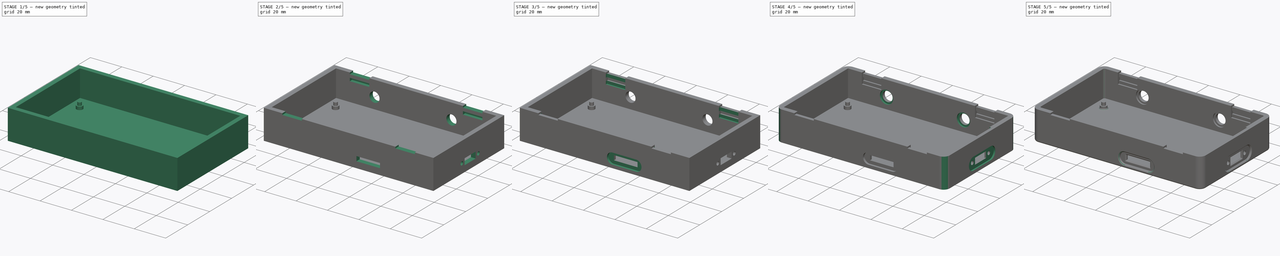
[diagram: build sequence overview — one tinted view per stage of 5, left to right]
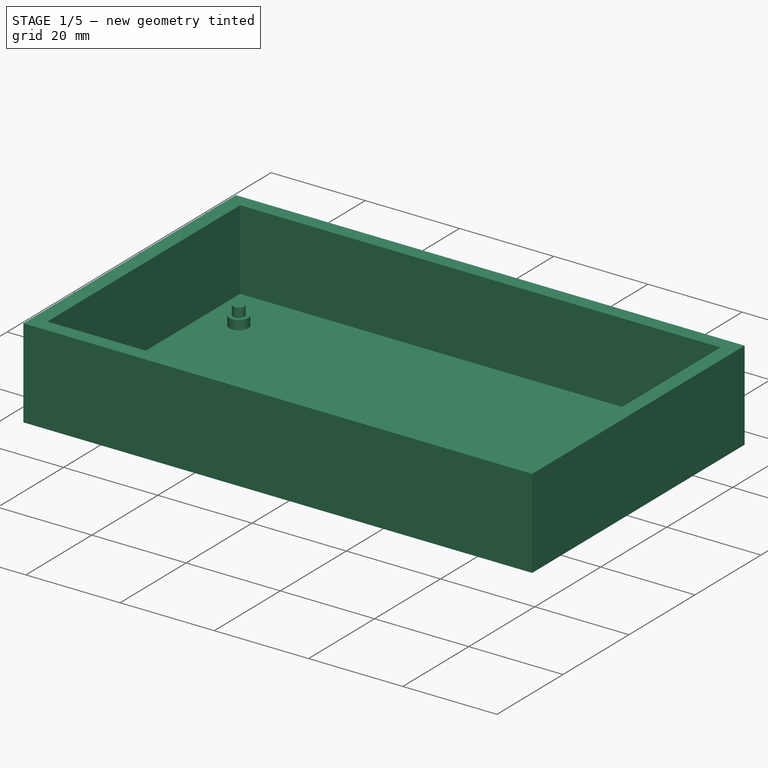
[diagram: stage 1 of 5 — iso view after this stage's code; geometry added in this stage tinted green]
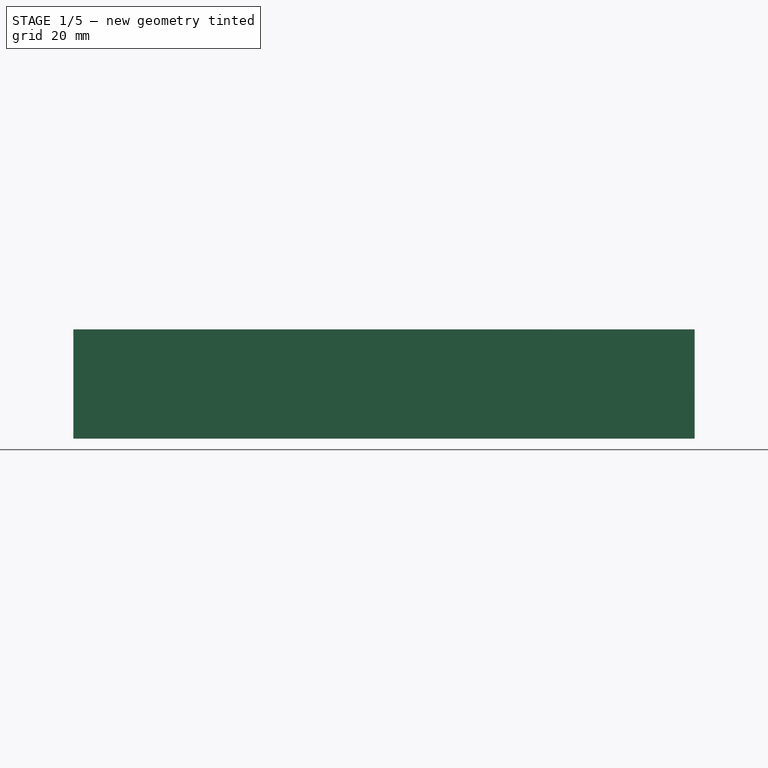
[diagram: stage 1 of 5 — front view after this stage's code; geometry added in this stage tinted green]
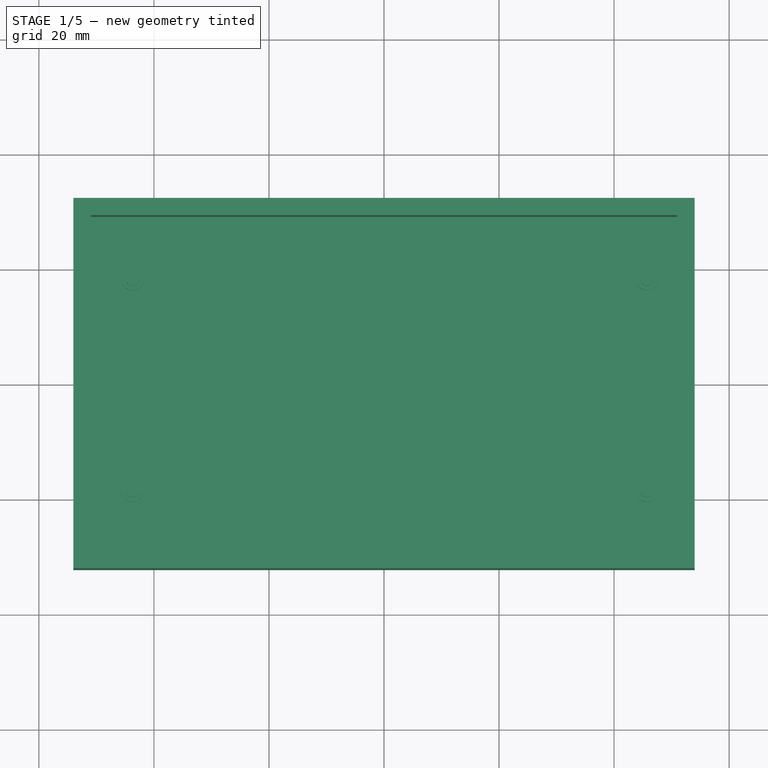
[diagram: stage 1 of 5 — top view after this stage's code; geometry added in this stage tinted green]
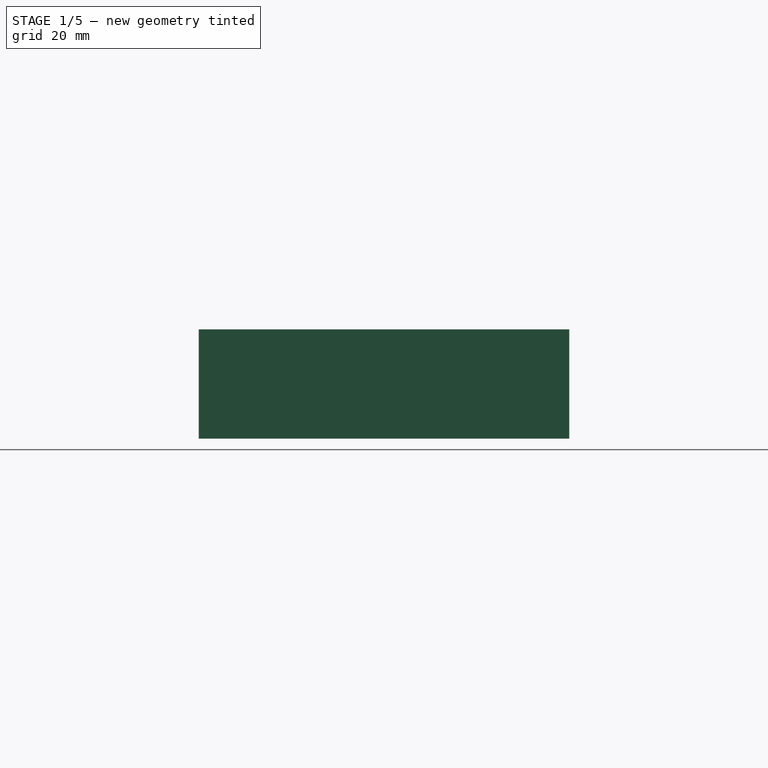
[diagram: stage 1 of 5 — right view after this stage's code; geometry added in this stage tinted green]
FCSTD DOCUMENT  (FreeCAD 0.17R13541 (Git))
Label: Case-Bottom-2
License: All rights reserved
LicenseURL: http://en.wikipedia.org/wiki/All_rights_reserved
objects: Sketcher::SketchObject×14, PartDesign::Pocket×11, Drawing::FeatureViewPython×9, Drawing::FeatureViewPart×6, PartDesign::Fillet×4, PartDesign::Pad×3, PartDesign::Chamfer×1, PartDesign::Body×1, Drawing::FeaturePage×1
note: 48 computed .brp shape members not serialized (recipe doc carries the construction recipe); baked Part::Feature solids carry a one-line shape summary decoded from their .brp

FEATURE [Sketcher::SketchObject] Sketch  label="Case-Outer"
  MapMode = 5
  Support = -> [XY_Plane]
  sketch-geometry (8):
    g0: LineSegment StartX=-54 StartY=32.2 StartZ=0 EndX=54 EndY=32.2 EndZ=0
    g1: LineSegment StartX=54 StartY=32.2 StartZ=0 EndX=54 EndY=-32.2 EndZ=0
    g2: LineSegment StartX=54 StartY=-32.2 StartZ=0 EndX=-54 EndY=-32.2 EndZ=0
    g3: LineSegment StartX=-54 StartY=-32.2 StartZ=0 EndX=-54 EndY=32.2 EndZ=0
    g4: LineSegment [constr] StartX=-51 StartY=29.2 StartZ=0 EndX=51 EndY=29.2 EndZ=0
    g5: LineSegment [constr] StartX=51 StartY=29.2 StartZ=0 EndX=51 EndY=-29.2 EndZ=0
    g6: LineSegment [constr] StartX=51 StartY=-29.2 StartZ=0 EndX=-51 EndY=-29.2 EndZ=0
    g7: LineSegment [constr] StartX=-51 StartY=-29.2 StartZ=0 EndX=-51 EndY=29.2 EndZ=0
  constraints (24):
    c: Coincident(g0,g1)
    c: Coincident(g1,g2)
    c: Coincident(g2,g3)
    c: Coincident(g3,g0)
    c: Horizontal(g0)
    c: Horizontal(g2)
    c: Vertical(g1)
    c: Vertical(g3)
    c: Symmetric(g0,g0,g-2)
    c: Symmetric(g0,g1,g-1)
    c: Coincident(g4,g5)
    c: Coincident(g5,g6)
    c: Coincident(g6,g7)
    c: Coincident(g7,g4)
    c: Horizontal(g4)
    c: Horizontal(g6)
    c: Vertical(g5)
    c: Vertical(g7)
    c: Symmetric(g4,g4,g-2)
    c: Symmetric(g4,g5,g-1)
    c: DistanceX(g0,g4) = 3
    c: DistanceY(g4,g0) = 3
    c: Distance(g4) = 102
    c: Distance(g7) = 58.4
FEATURE [PartDesign::Pad] Pad  label="Solid"
  Length = 19
  Length2 = 100
  Profile = -> Sketch
  Type = 0
FEATURE [Sketcher::SketchObject] Sketch001  label="Case-Inner"
  ExternalGeometry = -> [Pad]
  MapMode = 5
  Placement = pos=(0,0,19) rot=(0,0,1;0rad)
  Support = -> [Pad]
  sketch-geometry (4):
    g0: LineSegment StartX=-51 StartY=29.2 StartZ=0 EndX=51 EndY=29.2 EndZ=0
    g1: LineSegment StartX=51 StartY=29.2 StartZ=0 EndX=51 EndY=-29.2 EndZ=0
    g2: LineSegment StartX=51 StartY=-29.2 StartZ=0 EndX=-51 EndY=-29.2 EndZ=0
    g3: LineSegment StartX=-51 StartY=-29.2 StartZ=0 EndX=-51 EndY=29.2 EndZ=0
  constraints (12):
    c: Coincident(g0,g1)
    c: Coincident(g1,g2)
    c: Coincident(g2,g3)
    c: Coincident(g3,g0)
    c: Horizontal(g0)
    c: Horizontal(g2)
    c: Vertical(g1)
    c: Vertical(g3)
    c: DistanceY(g0,g-3) = 3
    c: Symmetric(g0,g0,g-2)
    c: Symmetric(g0,g1,g-1)
    c: DistanceX(g-3,g0) = 3
FEATURE [PartDesign::Pocket] Pocket  label="Border"
  BaseFeature = -> Pad
  Length = 17
  Length2 = 100
  Profile = -> Sketch001
  Type = 0
FEATURE [Sketcher::SketchObject] Sketch002  label="PCB-Supporter"
  ExternalGeometry = -> [Pocket]
  MapMode = 5
  Placement = pos=(0,0,2) rot=(0,0,1;0rad)
  Support = -> [Pocket]
  sketch-geometry (8):
    g0: LineSegment [constr] StartX=-43.71 StartY=18.4 StartZ=0 EndX=45.75 EndY=18.4 EndZ=0
    g1: LineSegment [constr] StartX=45.75 StartY=18.4 StartZ=0 EndX=45.75 EndY=-18.4 EndZ=0
    g2: LineSegment [constr] StartX=45.75 StartY=-18.4 StartZ=0 EndX=-43.71 EndY=-18.4 EndZ=0
    g3: LineSegment [constr] StartX=-43.71 StartY=-18.4 StartZ=0 EndX=-43.71 EndY=18.4 EndZ=0
    g4: Circle CenterX=-43.71 CenterY=18.4 CenterZ=0 NormalX=0 NormalY=0 NormalZ=1 AngleXU=0 Radius=2
    g5: Circle CenterX=45.75 CenterY=18.4 CenterZ=0 NormalX=0 NormalY=0 NormalZ=1 AngleXU=0 Radius=2
    g6: Circle CenterX=45.75 CenterY=-18.4 CenterZ=0 NormalX=0 NormalY=0 NormalZ=1 AngleXU=0 Radius=2
    g7: Circle CenterX=-43.71 CenterY=-18.4 CenterZ=0 NormalX=0 NormalY=0 NormalZ=1 AngleXU=0 Radius=2
  constraints (20):
    c: Coincident(g0,g1)
    c: Coincident(g1,g2)
    c: Coincident(g2,g3)
    c: Coincident(g3,g0)
    c: Horizontal(g0)
    c: Horizontal(g2)
    c: Vertical(g1)
    c: Vertical(g3)
    c: DistanceX(g-3,g0) = 7.29
    c: DistanceY(g0,g-3) = 10.8
    c: Coincident(g5,g0)
    c: Coincident(g6,g1)
    c: Coincident(g7,g2)
    c: Equal(g4,g5)
    c: Equal(g5,g6)
    c: Equal(g6,g7)
    c: Radius(g4) = 2
    c: Coincident(g4,g0)
    c: DistanceX(g-3,g0) = 96.75
    c: DistanceY(g2,g-3) = 47.6
FEATURE [PartDesign::Pad] Pad001  label="Supporter"
  BaseFeature = -> Pocket
  Length = 2
  Length2 = 100
  Profile = -> Sketch002
  Type = 0
FEATURE [Sketcher::SketchObject] Sketch003  label="PCB-Hole"
  ExternalGeometry = -> [Pad001]
  MapMode = 5
  Placement = pos=(0,0,2) rot=(0,0,1;0rad)
  Support = -> [Pad001]
  sketch-geometry (4):
    g0: Circle CenterX=-43.71 CenterY=18.4 CenterZ=0 NormalX=0 NormalY=0 NormalZ=1 AngleXU=0 Radius=1.2
    g1: Circle CenterX=45.75 CenterY=18.4 CenterZ=0 NormalX=0 NormalY=0 NormalZ=1 AngleXU=0 Radius=1.2
    g2: Circle CenterX=45.75 CenterY=-18.4 CenterZ=0 NormalX=0 NormalY=0 NormalZ=1 AngleXU=0 Radius=1.2
    g3: Circle CenterX=-43.71 CenterY=-18.4 CenterZ=0 NormalX=0 NormalY=0 NormalZ=1 AngleXU=0 Radius=1.2
  constraints (8):
    c: Coincident(g0,g-6)
    c: Coincident(g1,g-7)
    c: Coincident(g3,g-8)
    c: Coincident(g2,g-9)
    c: Equal(g1,g0)
    c: Equal(g0,g3)
    c: Equal(g3,g2)
    c: Radius(g0) = 1.2
FEATURE [PartDesign::Pad] Pad002  label="PCB-Hole001"
  BaseFeature = -> Pad001
  Length = 4
  Length2 = 100
  Profile = -> Sketch003
  Type = 0
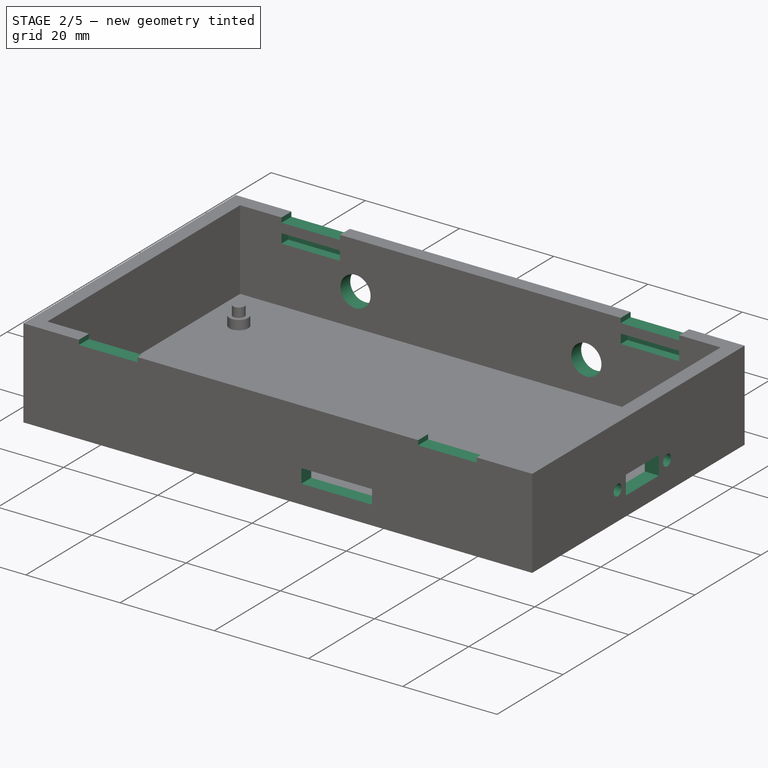
[diagram: stage 2 of 5 — iso view after this stage's code; geometry added in this stage tinted green]
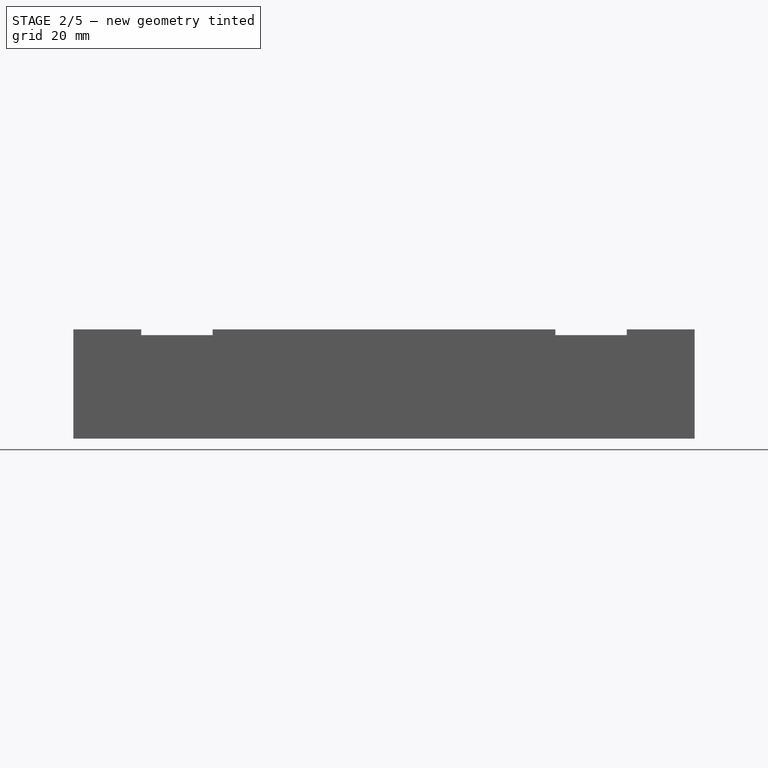
[diagram: stage 2 of 5 — front view after this stage's code; geometry added in this stage tinted green]
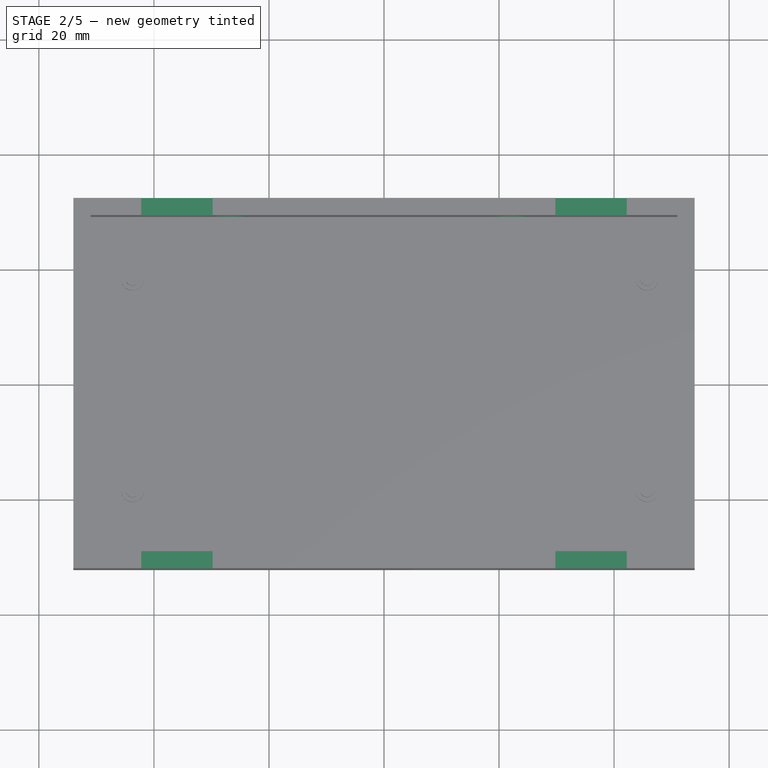
[diagram: stage 2 of 5 — top view after this stage's code; geometry added in this stage tinted green]
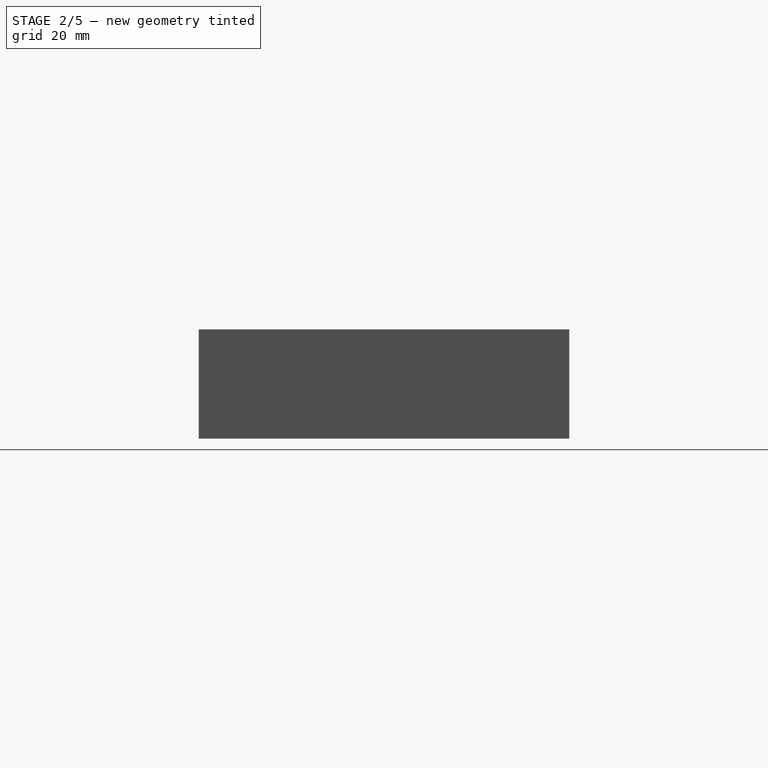
[diagram: stage 2 of 5 — right view after this stage's code; geometry added in this stage tinted green]
FEATURE [Sketcher::SketchObject] Sketch004  label="Power-Function-Key"
  ExternalGeometry = -> [Pad002]
  MapMode = 5
  Placement = pos=(0,32.2,0) rot=(0,0.707107,0.707107;3.14159rad)
  Support = -> [Pad002]
  sketch-geometry (10):
    g0: LineSegment StartX=-42.2 StartY=18 StartZ=0 EndX=-29.8 EndY=18 EndZ=0
    g1: LineSegment StartX=-29.8 StartY=18 StartZ=0 EndX=-29.8 EndY=19 EndZ=0
    g2: LineSegment StartX=-29.8 StartY=19 StartZ=0 EndX=-42.2 EndY=19 EndZ=0
    g3: LineSegment StartX=-42.2 StartY=19 StartZ=0 EndX=-42.2 EndY=18 EndZ=0
    g4: LineSegment StartX=29.8 StartY=19 StartZ=0 EndX=42.2 EndY=19 EndZ=0
    g5: LineSegment StartX=42.2 StartY=19 StartZ=0 EndX=42.2 EndY=18 EndZ=0
    g6: LineSegment StartX=42.2 StartY=18 StartZ=0 EndX=29.8 EndY=18 EndZ=0
    g7: LineSegment StartX=29.8 StartY=18 StartZ=0 EndX=29.8 EndY=19 EndZ=0
    g8: Circle CenterX=-22.5 CenterY=9 CenterZ=0 NormalX=0 NormalY=0 NormalZ=1 AngleXU=0 Radius=3.2
    g9: Circle CenterX=26.5 CenterY=9 CenterZ=0 NormalX=0 NormalY=0 NormalZ=1 AngleXU=0 Radius=3.2
  constraints (30):
    c: Coincident(g0,g1)
    c: Coincident(g1,g2)
    c: Coincident(g2,g3)
    c: Coincident(g3,g0)
    c: Horizontal(g0)
    c: Horizontal(g2)
    c: Vertical(g1)
    c: Vertical(g3)
    c: Coincident(g4,g5)
    c: Coincident(g5,g6)
    c: Coincident(g6,g7)
    c: Coincident(g7,g4)
    c: Horizontal(g4)
    c: Horizontal(g6)
    c: Vertical(g5)
    c: Vertical(g7)
    c: PointOnObject(g4,g-3)
    c: Equal(g0,g4)
    c: Equal(g1,g5)
    c: Distance(g0) = 12.4
    c: Distance(g5) = 1
    c: DistanceX(g-3,g0) = 11.8
    c: DistanceX(g-3,g4) = 83.8
    c: Equal(g8,g9)
    c: Radius(g8) = 3.2
    c: DistanceX(g-3,g8) = 31.5
    c: DistanceX(g-3,g9) = 80.5
    c: Horizontal(g8,g9)
    c: DistanceY(g-4,g8) = 7
    c: Horizontal(g1,g4)
FEATURE [PartDesign::Pocket] Pocket001  label="Right-Side"
  BaseFeature = -> Pad002
  Length = 3
  Length2 = 100
  Profile = -> Sketch004
  Type = 0
FEATURE [Sketcher::SketchObject] Sketch005  label="SD-Card"
  ExternalGeometry = -> [Pocket001]
  MapMode = 5
  Placement = pos=(0,-32.2,0) rot=(1,0,0;1.5708rad)
  Support = -> [Pocket001]
  sketch-geometry (12):
    g0: LineSegment StartX=-42.2 StartY=19 StartZ=0 EndX=-29.8 EndY=19 EndZ=0
    g1: LineSegment StartX=-29.8 StartY=19 StartZ=0 EndX=-29.8 EndY=18 EndZ=0
    g2: LineSegment StartX=-29.8 StartY=18 StartZ=0 EndX=-42.2 EndY=18 EndZ=0
    g3: LineSegment StartX=-42.2 StartY=18 StartZ=0 EndX=-42.2 EndY=19 EndZ=0
    g4: LineSegment StartX=29.8 StartY=19 StartZ=0 EndX=42.2 EndY=19 EndZ=0
    g5: LineSegment StartX=42.2 StartY=19 StartZ=0 EndX=42.2 EndY=18 EndZ=0
    g6: LineSegment StartX=42.2 StartY=18 StartZ=0 EndX=29.8 EndY=18 EndZ=0
    g7: LineSegment StartX=29.8 StartY=18 StartZ=0 EndX=29.8 EndY=19 EndZ=0
    g8: LineSegment StartX=5 StartY=7 StartZ=0 EndX=20 EndY=7 EndZ=0
    g9: LineSegment StartX=20 StartY=7 StartZ=0 EndX=20 EndY=4 EndZ=0
    g10: LineSegment StartX=20 StartY=4 StartZ=0 EndX=5 EndY=4 EndZ=0
    g11: LineSegment StartX=5 StartY=4 StartZ=0 EndX=5 EndY=7 EndZ=0
  constraints (34):
    c: Coincident(g3,g2)
    c: Coincident(g1,g2)
    c: Coincident(g1,g0)
    c: Coincident(g3,g0)
    c: Horizontal(g0)
    c: Horizontal(g2)
    c: Vertical(g3)
    c: Vertical(g1)
    c: Coincident(g7,g4)
    c: Coincident(g4,g5)
    c: Coincident(g6,g5)
    c: Coincident(g6,g7)
    c: Horizontal(g6)
    c: Horizontal(g4)
    c: Vertical(g7)
    c: Vertical(g5)
    c: Equal(g1,g5)
    c: Equal(g0,g4)
    c: Coincident(g11,g10)
    c: Coincident(g11,g8)
    c: Coincident(g8,g9)
    c: Coincident(g9,g10)
    c: Horizontal(g8)
    c: Horizontal(g10)
    c: Vertical(g11)
    c: Vertical(g9)
    c: Coincident(g1,g-5)
    c: Coincident(g5,g-6)
    c: DistanceY(g5,g5) = 1
    c: Distance(g10) = 15
    c: Distance(g11) = 3
    c: DistanceX(g9,g-4) = 31
    c: DistanceY(g-4,g9) = 2
    c: DistanceX(g4,g4) = 12.4
FEATURE [PartDesign::Pocket] Pocket002  label="Left-Side"
  BaseFeature = -> Pocket001
  Length = 3
  Length2 = 100
  Profile = -> Sketch005
  Type = 0
FEATURE [Sketcher::SketchObject] Sketch006  label="USB-LED"
  ExternalGeometry = -> [Pocket002]
  MapMode = 5
  Placement = pos=(54,0,0) rot=(0.57735,0.57735,0.57735;2.0944rad)
  Support = -> [Pocket002]
  sketch-geometry (6):
    g0: LineSegment StartX=-3.8 StartY=8 StartZ=0 EndX=6.2 EndY=8 EndZ=0
    g1: LineSegment StartX=6.2 StartY=8 StartZ=0 EndX=6.2 EndY=4 EndZ=0
    g2: LineSegment StartX=6.2 StartY=4 StartZ=0 EndX=-3.8 EndY=4 EndZ=0
    g3: LineSegment StartX=-3.8 StartY=4 StartZ=0 EndX=-3.8 EndY=8 EndZ=0
    g4: Circle CenterX=-6.3 CenterY=6 CenterZ=0 NormalX=0 NormalY=0 NormalZ=1 AngleXU=0 Radius=1.2
    g5: Circle CenterX=8.7 CenterY=6 CenterZ=0 NormalX=0 NormalY=0 NormalZ=1 AngleXU=0 Radius=1.2
  constraints (18):
    c: Coincident(g0,g1)
    c: Coincident(g1,g2)
    c: Coincident(g2,g3)
    c: Coincident(g3,g0)
    c: Horizontal(g0)
    c: Horizontal(g2)
    c: Vertical(g1)
    c: Vertical(g3)
    c: Equal(g4,g5)
    c: Radius(g4) = 1.2
    c: Distance(g0) = 10
    c: Distance(g1) = 4
    c: Horizontal(g5,g4)
    c: DistanceX(g5,g-4) = 20.5
    c: DistanceX(g4,g-4) = 35.5
    c: DistanceX(g1,g-4) = 23
    c: DistanceY(g-4,g1) = 2
    c: DistanceY(g-4,g5) = 4
FEATURE [PartDesign::Pocket] Pocket003  label="Bottom-Side"
  BaseFeature = -> Pocket002
  Length = 3
  Length2 = 100
  Profile = -> Sketch006
  Type = 0
FEATURE [Sketcher::SketchObject] Sketch007  label="Locking-Hole-R"
  ExternalGeometry = -> [Pocket003]
  MapMode = 5
  Placement = pos=(0,29.2,0) rot=(1,0,0;1.5708rad)
  Support = -> [Pocket003]
  sketch-geometry (8):
    g0: LineSegment StartX=-42.2 StartY=16 StartZ=0 EndX=-29.8 EndY=16 EndZ=0
    g1: LineSegment StartX=-29.8 StartY=16 StartZ=0 EndX=-29.8 EndY=14 EndZ=0
    g2: LineSegment StartX=-29.8 StartY=14 StartZ=0 EndX=-42.2 EndY=14 EndZ=0
    g3: LineSegment StartX=-42.2 StartY=14 StartZ=0 EndX=-42.2 EndY=16 EndZ=0
    g4: LineSegment StartX=29.8 StartY=16 StartZ=0 EndX=42.2 EndY=16 EndZ=0
    g5: LineSegment StartX=42.2 StartY=16 StartZ=0 EndX=42.2 EndY=14 EndZ=0
    g6: LineSegment StartX=42.2 StartY=14 StartZ=0 EndX=29.8 EndY=14 EndZ=0
    g7: LineSegment StartX=29.8 StartY=14 StartZ=0 EndX=29.8 EndY=16 EndZ=0
  constraints (24):
    c: Coincident(g0,g1)
    c: Coincident(g1,g2)
    c: Coincident(g2,g3)
    c: Coincident(g3,g0)
    c: Horizontal(g0)
    c: Horizontal(g2)
    c: Vertical(g1)
    c: Vertical(g3)
    c: Coincident(g4,g5)
    c: Coincident(g5,g6)
    c: Coincident(g6,g7)
    c: Coincident(g7,g4)
    c: Horizontal(g4)
    c: Horizontal(g6)
    c: Vertical(g5)
    c: Vertical(g7)
    c: Vertical(g-5,g0)
    c: Vertical(g-5,g0)
    c: Vertical(g4,g-4)
    c: Vertical(g-4,g4)
    c: Equal(g1,g5)
    c: Horizontal(g0,g4)
    c: DistanceY(g0,g-5) = 2
    c: DistanceY(g2,g-5) = 4
FEATURE [PartDesign::Pocket] Pocket004  label="Right-Locking-Hole"
  BaseFeature = -> Pocket003
  Length = 2
  Length2 = 100
  Profile = -> Sketch007
  Type = 0
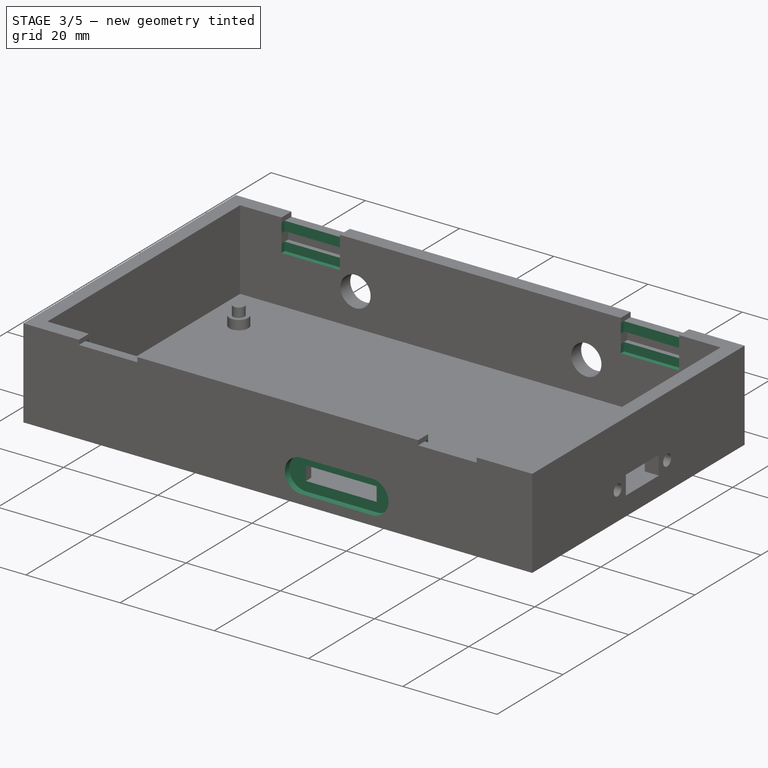
[diagram: stage 3 of 5 — iso view after this stage's code; geometry added in this stage tinted green]
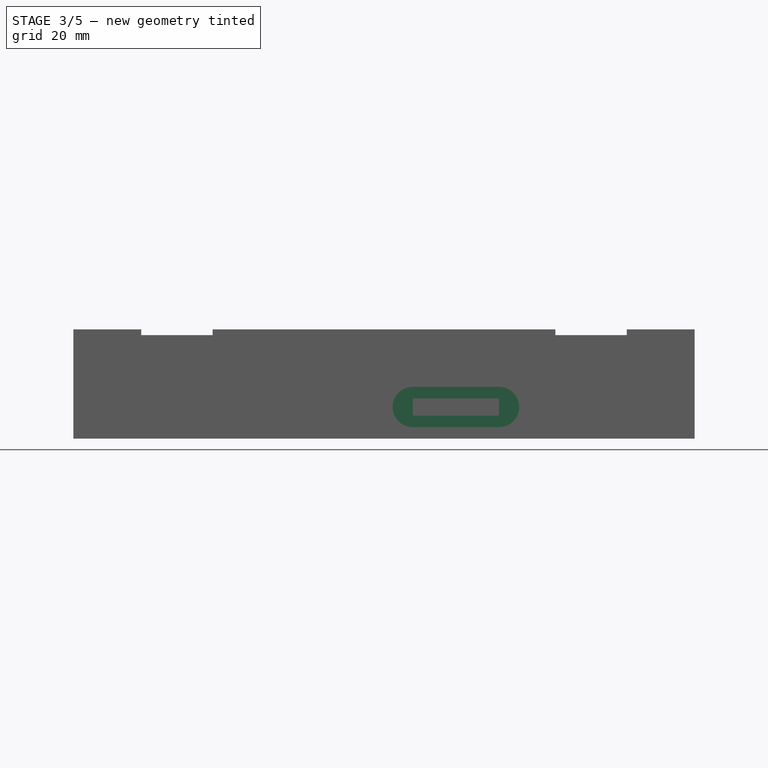
[diagram: stage 3 of 5 — front view after this stage's code; geometry added in this stage tinted green]
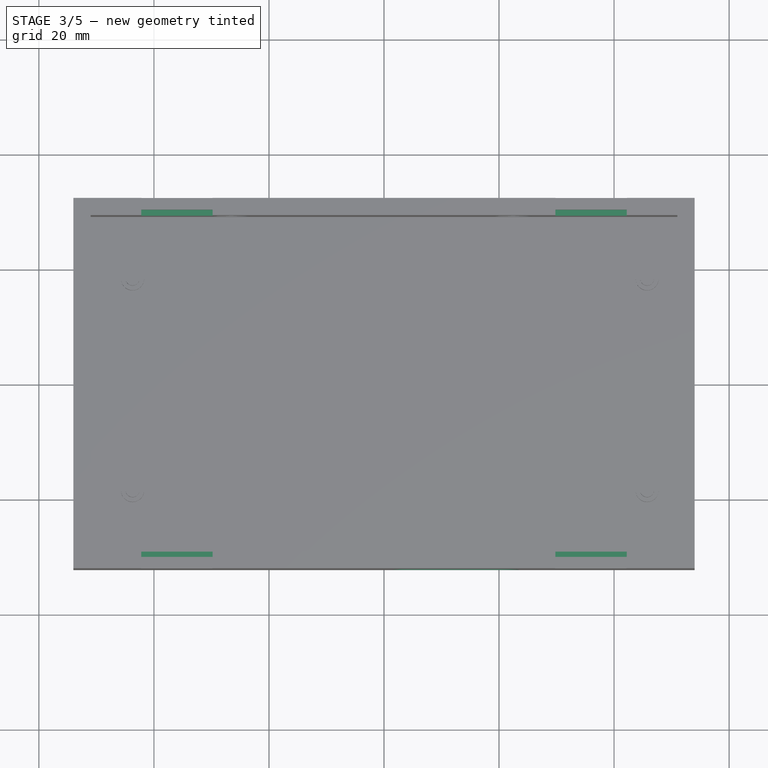
[diagram: stage 3 of 5 — top view after this stage's code; geometry added in this stage tinted green]
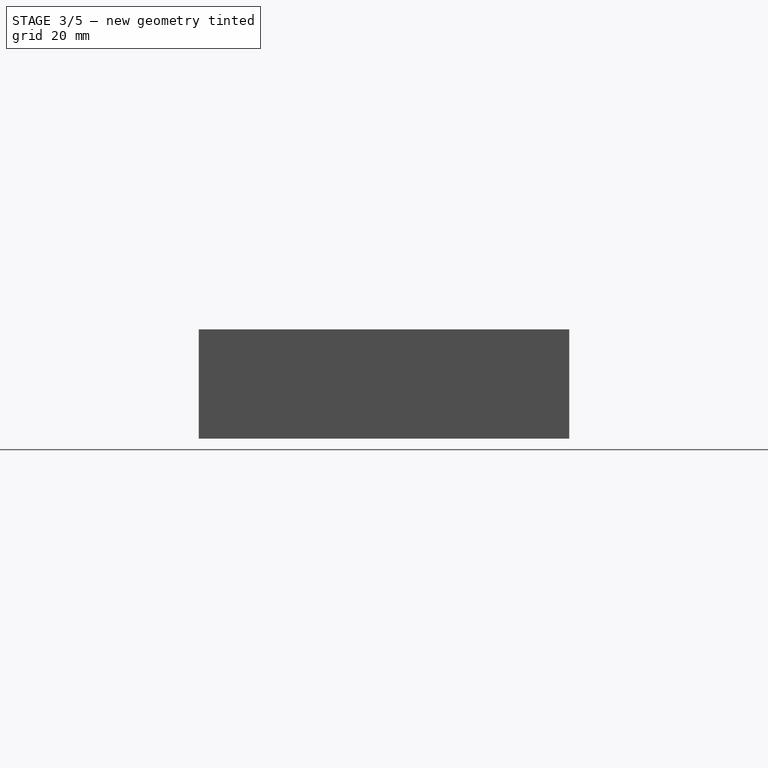
[diagram: stage 3 of 5 — right view after this stage's code; geometry added in this stage tinted green]
FEATURE [Sketcher::SketchObject] Sketch008  label="Locking-Hole-L"
  ExternalGeometry = -> [Pocket004]
  MapMode = 5
  Placement = pos=(0,-29.2,0) rot=(0,0.707107,0.707107;3.14159rad)
  Support = -> [Pocket004]
  sketch-geometry (8):
    g0: LineSegment StartX=-42.2 StartY=16 StartZ=0 EndX=-29.8 EndY=16 EndZ=0
    g1: LineSegment StartX=-29.8 StartY=16 StartZ=0 EndX=-29.8 EndY=14 EndZ=0
    g2: LineSegment StartX=-29.8 StartY=14 StartZ=0 EndX=-42.2 EndY=14 EndZ=0
    g3: LineSegment StartX=-42.2 StartY=14 StartZ=0 EndX=-42.2 EndY=16 EndZ=0
    g4: LineSegment StartX=29.8 StartY=16 StartZ=0 EndX=42.2 EndY=16 EndZ=0
    g5: LineSegment StartX=42.2 StartY=16 StartZ=0 EndX=42.2 EndY=14 EndZ=0
    g6: LineSegment StartX=42.2 StartY=14 StartZ=0 EndX=29.8 EndY=14 EndZ=0
    g7: LineSegment StartX=29.8 StartY=14 StartZ=0 EndX=29.8 EndY=16 EndZ=0
  constraints (24):
    c: Coincident(g0,g1)
    c: Coincident(g1,g2)
    c: Coincident(g2,g3)
    c: Coincident(g3,g0)
    c: Horizontal(g0)
    c: Horizontal(g2)
    c: Vertical(g1)
    c: Vertical(g3)
    c: Coincident(g4,g5)
    c: Coincident(g5,g6)
    c: Coincident(g6,g7)
    c: Coincident(g7,g4)
    c: Horizontal(g4)
    c: Horizontal(g6)
    c: Vertical(g5)
    c: Vertical(g7)
    c: Vertical(g-3,g0)
    c: Vertical(g-3,g0)
    c: Vertical(g-4,g4)
    c: Vertical(g-4,g4)
    c: Equal(g3,g7)
    c: DistanceY(g3,g3) = 2
    c: DistanceY(g0,g-3) = 2
    c: Horizontal(g0,g4)
FEATURE [PartDesign::Pocket] Pocket005  label="Left-Locking-Hole"
  BaseFeature = -> Pocket004
  Length = 2
  Length2 = 100
  Profile = -> Sketch008
  Type = 0
FEATURE [Sketcher::SketchObject] Sketch009  label="Locking-Hole-Sunken"
  ExternalGeometry = -> [Pocket005]
  MapMode = 5
  Placement = pos=(0,0,19) rot=(0,0,1;0rad)
  Support = -> [Pocket005]
  sketch-geometry (16):
    g0: LineSegment StartX=-42.2 StartY=30.2 StartZ=0 EndX=-29.8 EndY=30.2 EndZ=0
    g1: LineSegment StartX=-29.8 StartY=30.2 StartZ=0 EndX=-29.8 EndY=29.2 EndZ=0
    g2: LineSegment StartX=-29.8 StartY=29.2 StartZ=0 EndX=-42.2 EndY=29.2 EndZ=0
    g3: LineSegment StartX=-42.2 StartY=29.2 StartZ=0 EndX=-42.2 EndY=30.2 EndZ=0
    g4: LineSegment StartX=29.8 StartY=30.2 StartZ=0 EndX=42.2 EndY=30.2 EndZ=0
    g5: LineSegment StartX=42.2 StartY=30.2 StartZ=0 EndX=42.2 EndY=29.2 EndZ=0
    g6: LineSegment StartX=42.2 StartY=29.2 StartZ=0 EndX=29.8 EndY=29.2 EndZ=0
    g7: LineSegment StartX=29.8 StartY=29.2 StartZ=0 EndX=29.8 EndY=30.2 EndZ=0
    g8: LineSegment StartX=29.8 StartY=-29.2 StartZ=0 EndX=42.2 EndY=-29.2 EndZ=0
    g9: LineSegment StartX=42.2 StartY=-29.2 StartZ=0 EndX=42.2 EndY=-30.2 EndZ=0
    g10: LineSegment StartX=42.2 StartY=-30.2 StartZ=0 EndX=29.8 EndY=-30.2 EndZ=0
    g11: LineSegment StartX=29.8 StartY=-30.2 StartZ=0 EndX=29.8 EndY=-29.2 EndZ=0
    g12: LineSegment StartX=-42.2 StartY=-29.2 StartZ=0 EndX=-29.8 EndY=-29.2 EndZ=0
    g13: LineSegment StartX=-29.8 StartY=-29.2 StartZ=0 EndX=-29.8 EndY=-30.2 EndZ=0
    g14: LineSegment StartX=-29.8 StartY=-30.2 StartZ=0 EndX=-42.2 EndY=-30.2 EndZ=0
    g15: LineSegment StartX=-42.2 StartY=-30.2 StartZ=0 EndX=-42.2 EndY=-29.2 EndZ=0
  constraints (48):
    c: Coincident(g0,g1)
    c: Coincident(g1,g2)
    c: Coincident(g2,g3)
    c: Coincident(g3,g0)
    c: Horizontal(g0)
    c: Horizontal(g2)
    c: Vertical(g1)
    c: Vertical(g3)
    c: Coincident(g4,g5)
    c: Coincident(g5,g6)
    c: Coincident(g6,g7)
    c: Coincident(g7,g4)
    c: Horizontal(g4)
    c: Horizontal(g6)
    c: Vertical(g5)
    c: Vertical(g7)
    c: Coincident(g8,g9)
    c: Coincident(g9,g10)
    c: Coincident(g10,g11)
    c: Coincident(g11,g8)
    c: Horizontal(g8)
    c: Horizontal(g10)
    c: Vertical(g9)
    c: Vertical(g11)
    c: Coincident(g12,g13)
    c: Coincident(g13,g14)
    c: Coincident(g14,g15)
    c: Coincident(g15,g12)
    c: Horizontal(g12)
    c: Horizontal(g14)
    c: Vertical(g13)
    c: Vertical(g15)
    c: Vertical(g0,g-3)
    c: Vertical(g-3,g0)
    c: Vertical(g4,g-4)
    c: Vertical(g4,g-4)
    c: Vertical(g-5,g10)
    c: Vertical(g-5,g9)
    c: Vertical(g-6,g14)
    c: Vertical(g-6,g13)
    c: Horizontal(g0,g4)
    c: Horizontal(g12,g8)
    c: Equal(g3,g15)
    c: Equal(g15,g11)
    c: Equal(g11,g7)
    c: DistanceY(g1,g1) = 1
    c: DistanceY(g0,g-3) = 2
    c: DistanceY(g-6,g14) = 2
FEATURE [PartDesign::Pocket] Pocket006  label="Locking-Hole-Guide"
  BaseFeature = -> Pocket005
  Length = 6.8
  Length2 = 100
  Profile = -> Sketch009
  Type = 0
FEATURE [Sketcher::SketchObject] Sketch010  label="SD-Card-Sunken"
  ExternalGeometry = -> [Pocket006]
  MapMode = 5
  Placement = pos=(0,-32.2,0) rot=(1,0,0;1.5708rad)
  Support = -> [Pocket006]
  sketch-geometry (4):
    g0: ArcOfCircle CenterX=5 CenterY=5.5 CenterZ=0 NormalX=0 NormalY=0 NormalZ=1 AngleXU=0 Radius=3.5 StartAngle=1.5708 EndAngle=4.71239
    g1: ArcOfCircle CenterX=20 CenterY=5.5 CenterZ=0 NormalX=0 NormalY=0 NormalZ=1 AngleXU=0 Radius=3.5 StartAngle=4.71239 EndAngle=7.85398
    g2: LineSegment StartX=5 StartY=2 StartZ=0 EndX=20 EndY=2 EndZ=0
    g3: LineSegment StartX=5 StartY=9 StartZ=0 EndX=20 EndY=9 EndZ=0
  constraints (10):
    c: Tangent(g0,g3) = 1.5708
    c: Tangent(g0,g2) = -1.5708
    c: Tangent(g2,g1) = -1.5708
    c: Tangent(g3,g1) = 1.5708
    c: Horizontal(g2)
    c: Equal(g0,g1)
    c: Vertical(g0,g-3)
    c: Vertical(g1,g-3)
    c: DistanceY(g1,g-4) = 2
    c: DistanceY(g-3,g1) = 2
FEATURE [PartDesign::Pocket] Pocket007  label="Left-Sunken"
  BaseFeature = -> Pocket006
  Length = 1.4
  Length2 = 100
  Profile = -> Sketch010
  Type = 0
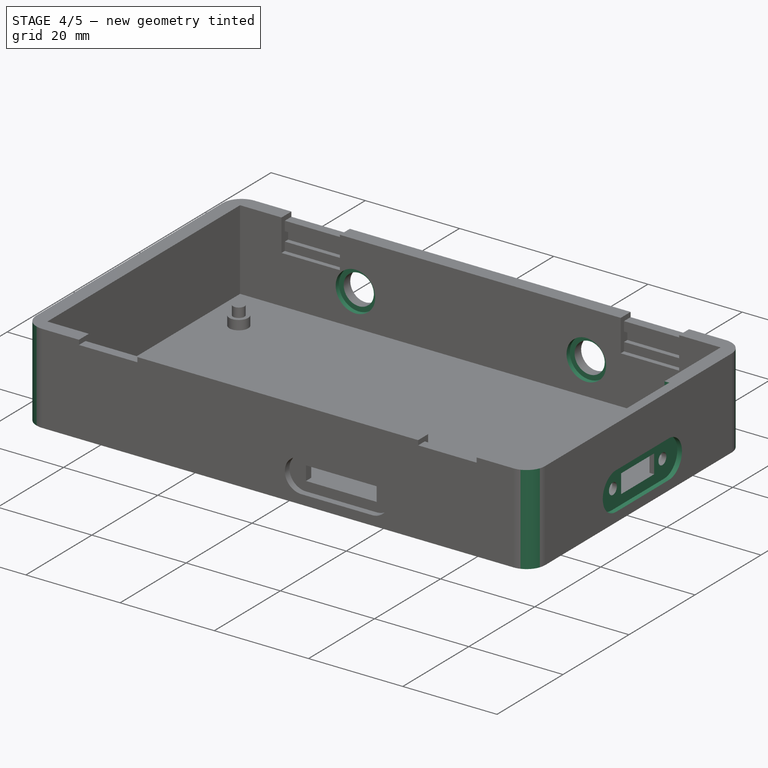
[diagram: stage 4 of 5 — iso view after this stage's code; geometry added in this stage tinted green]
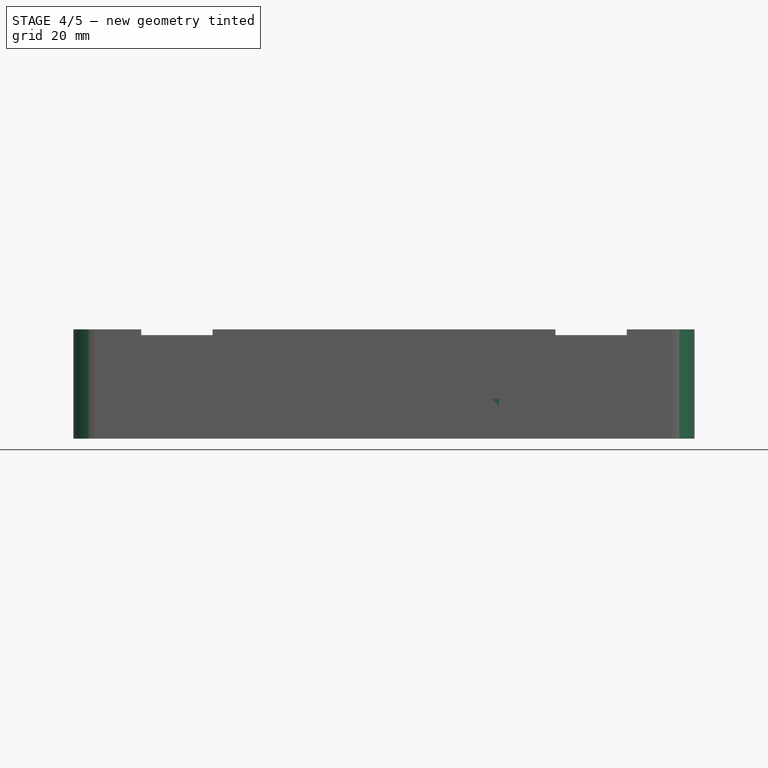
[diagram: stage 4 of 5 — front view after this stage's code; geometry added in this stage tinted green]
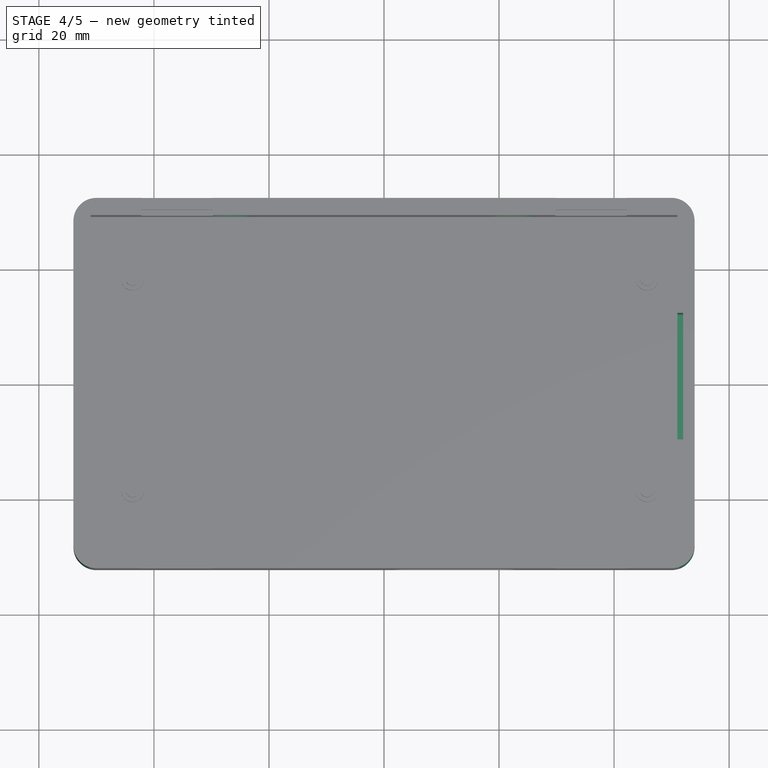
[diagram: stage 4 of 5 — top view after this stage's code; geometry added in this stage tinted green]
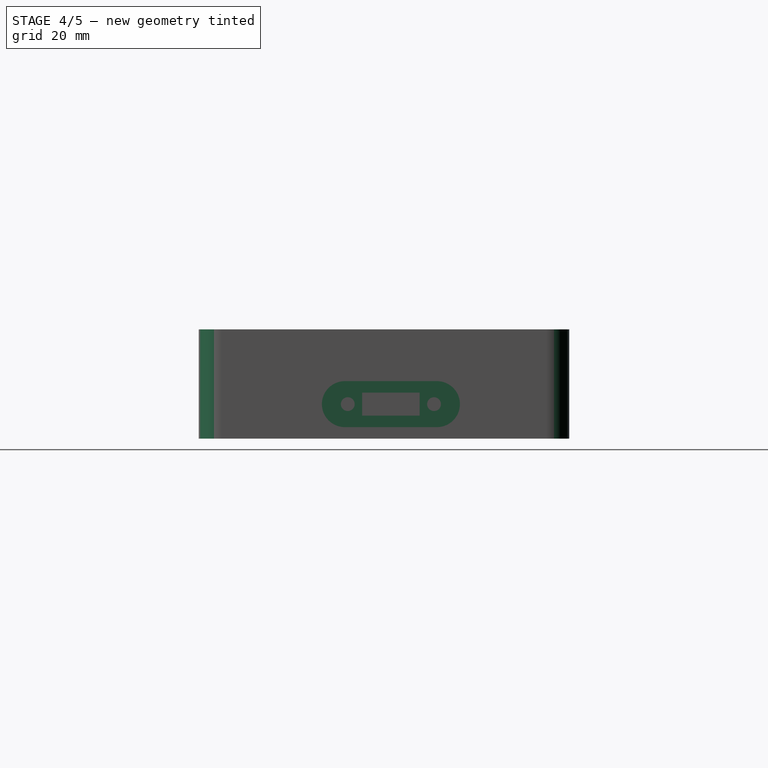
[diagram: stage 4 of 5 — right view after this stage's code; geometry added in this stage tinted green]
FEATURE [Sketcher::SketchObject] Sketch011  label="USB-Sunken-Outer"
  ExternalGeometry = -> [Pocket007]
  MapMode = 5
  Placement = pos=(54,0,0) rot=(0.57735,0.57735,0.57735;2.0944rad)
  Support = -> [Pocket007]
  sketch-geometry (4):
    g0: ArcOfCircle CenterX=-6.8 CenterY=6 CenterZ=0 NormalX=0 NormalY=0 NormalZ=1 AngleXU=0 Radius=4 StartAngle=1.5708 EndAngle=4.71239
    g1: ArcOfCircle CenterX=9.2 CenterY=6 CenterZ=0 NormalX=0 NormalY=0 NormalZ=1 AngleXU=0 Radius=4 StartAngle=4.71239 EndAngle=7.85398
    g2: LineSegment StartX=-6.8 StartY=2 StartZ=0 EndX=9.2 EndY=2 EndZ=0
    g3: LineSegment StartX=-6.8 StartY=10 StartZ=0 EndX=9.2 EndY=10 EndZ=0
  constraints (10):
    c: Tangent(g0,g3) = 1.5708
    c: Tangent(g0,g2) = -1.5708
    c: Tangent(g2,g1) = -1.5708
    c: Tangent(g3,g1) = 1.5708
    c: Horizontal(g2)
    c: Equal(g0,g1)
    c: DistanceX(g-4,g1) = 3
    c: DistanceY(g1,g-4) = 2
    c: DistanceX(g0,g-3) = 3
    c: DistanceY(g-3,g0) = 2
FEATURE [PartDesign::Pocket] Pocket008  label="Bottom-Sunken"
  BaseFeature = -> Pocket007
  Length = 1
  Length2 = 100
  Profile = -> Sketch011
  Type = 0
FEATURE [Sketcher::SketchObject] Sketch012  label="Key-Outer"
  ExternalGeometry = -> [Pocket008]
  MapMode = 5
  Placement = pos=(0,29.2,0) rot=(1,0,0;1.5708rad)
  sketch-geometry (2):
    g0: Circle CenterX=-26.5 CenterY=9 CenterZ=0 NormalX=0 NormalY=0 NormalZ=1 AngleXU=0 Radius=4.2
    g1: Circle CenterX=22.5 CenterY=9 CenterZ=0 NormalX=0 NormalY=0 NormalZ=1 AngleXU=0 Radius=4.2
  constraints (4):
    c: Coincident(g-4,g1)
    c: Coincident(g-3,g0)
    c: Radius(g0) = 4.2
    c: Equal(g0,g1)
FEATURE [PartDesign::Pocket] Pocket009
  BaseFeature = -> Pocket008
  Length = 1
  Length2 = 100
  Profile = -> Sketch012
  Type = 0
FEATURE [Sketcher::SketchObject] Sketch013  label="USB-Sunken-Inner"
  ExternalGeometry = -> [Pocket009]
  MapMode = 5
  Placement = pos=(51,0,0) rot=(0.57735,-0.57735,-0.57735;2.0944rad)
  Support = -> [Pocket009]
  sketch-geometry (12):
    g0: LineSegment StartX=-12.2 StartY=19 StartZ=0 EndX=9.8 EndY=19 EndZ=0
    g1: LineSegment StartX=9.8 StartY=19 StartZ=0 EndX=9.8 EndY=2 EndZ=0
    g2: LineSegment StartX=9.8 StartY=2 StartZ=0 EndX=-12.2 EndY=2 EndZ=0
    g3: LineSegment StartX=-12.2 StartY=2 StartZ=0 EndX=-12.2 EndY=19 EndZ=0
    g4: LineSegment [constr] StartX=-12.2 StartY=4 StartZ=0 EndX=-6.2 EndY=4 EndZ=0
    g5: LineSegment [constr] StartX=-6.2 StartY=4 StartZ=0 EndX=-6.2 EndY=2 EndZ=0
    g6: LineSegment [constr] StartX=-6.2 StartY=2 StartZ=0 EndX=-12.2 EndY=2 EndZ=0
    g7: LineSegment [constr] StartX=-12.2 StartY=2 StartZ=0 EndX=-12.2 EndY=4 EndZ=0
    g8: LineSegment [constr] StartX=3.8 StartY=4 StartZ=0 EndX=9.8 EndY=4 EndZ=0
    g9: LineSegment [constr] StartX=9.8 StartY=4 StartZ=0 EndX=9.8 EndY=2 EndZ=0
    g10: LineSegment [constr] StartX=9.8 StartY=2 StartZ=0 EndX=3.8 EndY=2 EndZ=0
    g11: LineSegment [constr] StartX=3.8 StartY=2 StartZ=0 EndX=3.8 EndY=4 EndZ=0
  constraints (35):
    c: Coincident(g0,g1)
    c: Coincident(g1,g2)
    c: Coincident(g2,g3)
    c: Coincident(g3,g0)
    c: Horizontal(g0)
    c: Horizontal(g2)
    c: Vertical(g1)
    c: Vertical(g3)
    c: PointOnObject(g0,g-4)
    c: PointOnObject(g2,g-5)
    c: Coincident(g4,g5)
    c: Coincident(g5,g6)
    c: Coincident(g6,g7)
    c: Coincident(g7,g4)
    c: Horizontal(g4)
    c: Horizontal(g6)
    c: Vertical(g5)
    c: Vertical(g7)
    c: Coincident(g4,g-3)
    c: PointOnObject(g5,g-5)
    c: Coincident(g6,g2)
    c: Coincident(g8,g9)
    c: Coincident(g9,g10)
    c: Coincident(g10,g11)
    c: Coincident(g11,g8)
    c: Horizontal(g8)
    c: Horizontal(g10)
    c: Vertical(g9)
    c: Vertical(g11)
    c: Coincident(g-3,g8)
    c: PointOnObject(g9,g2)
    c: PointOnObject(g9,g-5)
    c: Coincident(g9,g1)
    c: Equal(g4,g8)
    c: Distance(g8) = 6
FEATURE [PartDesign::Pocket] Pocket010
  BaseFeature = -> Pocket009
  Length = 1
  Length2 = 100
  Profile = -> Sketch013
  Type = 0
FEATURE [PartDesign::Fillet] Fillet  label="Fillet-Outer"
  Base = -> Pocket010 [Edge2,Edge12,Edge60,Edge19]
  BaseFeature = -> Pocket010
  Radius = 4
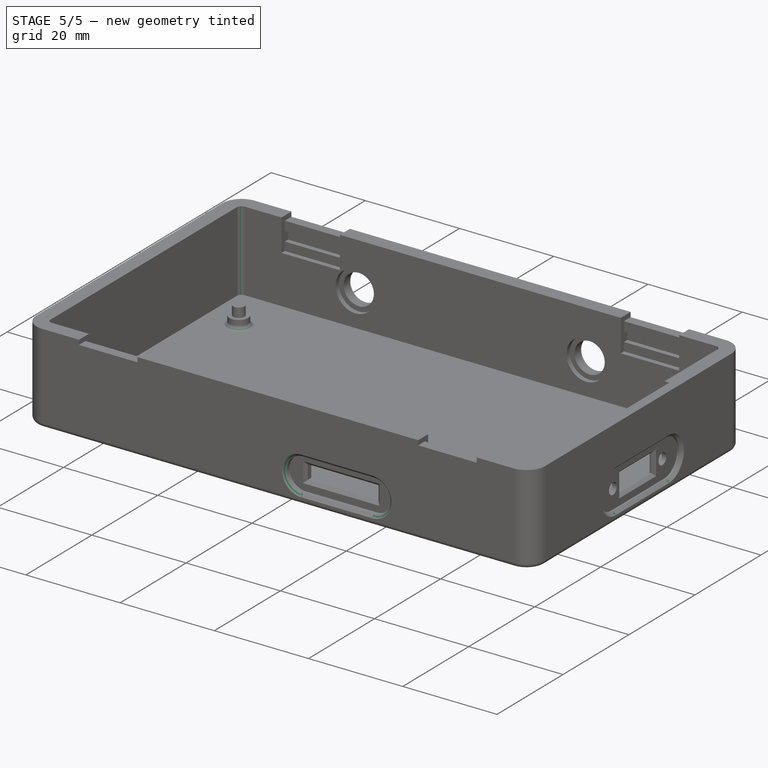
[diagram: stage 5 of 5 — iso view after this stage's code; geometry added in this stage tinted green]
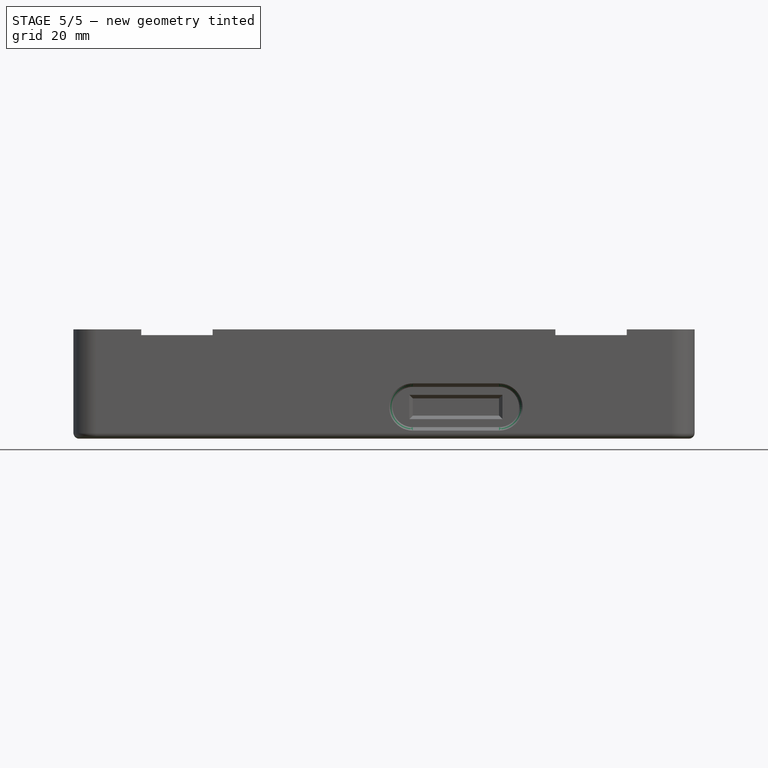
[diagram: stage 5 of 5 — front view after this stage's code; geometry added in this stage tinted green]
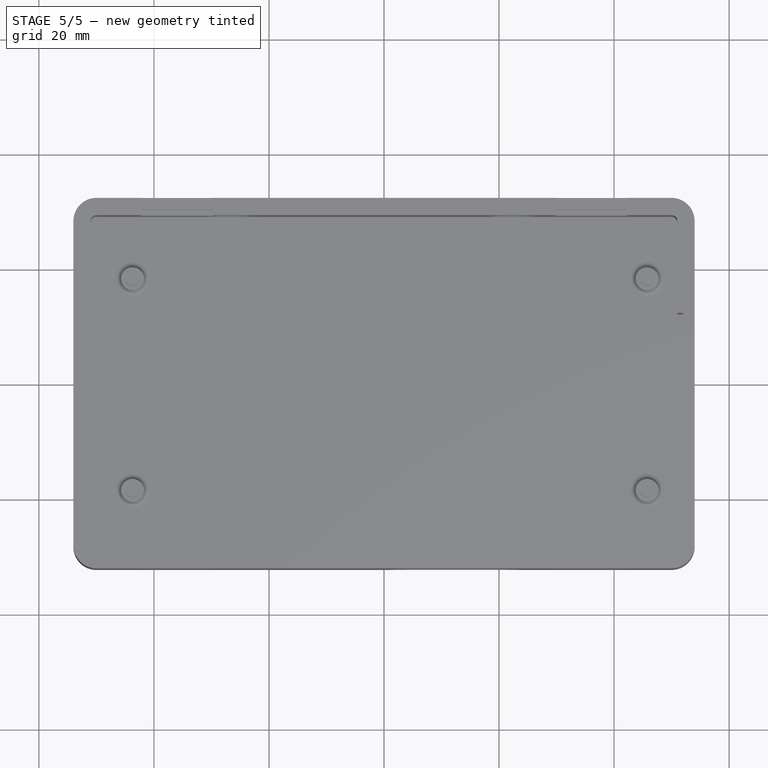
[diagram: stage 5 of 5 — top view after this stage's code; geometry added in this stage tinted green]
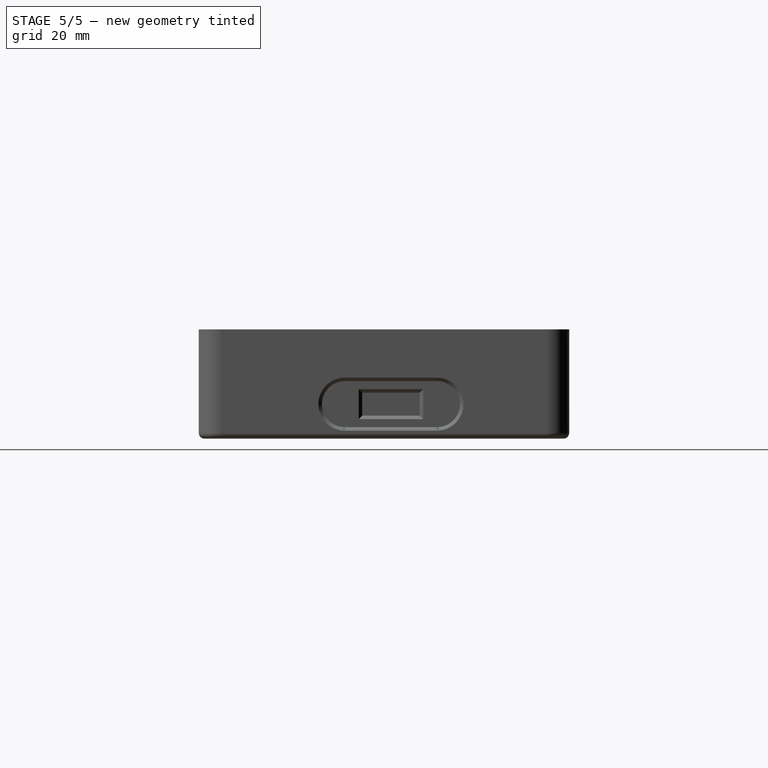
[diagram: stage 5 of 5 — right view after this stage's code; geometry added in this stage tinted green]
FEATURE [PartDesign::Fillet] Fillet001  label="Fillet-Inner"
  Base = -> Fillet [Edge118,Edge110,Edge112,Edge122]
  BaseFeature = -> Fillet
  Radius = 1
FEATURE [PartDesign::Chamfer] Chamfer
  Base = -> Fillet001 [Edge65,Edge263,Edge171,Edge312,Edge310,Edge174,Edge176,Edge178,Edge315,Edge314]
  BaseFeature = -> Fillet001
  Size = 0.6
FEATURE [PartDesign::Fillet] Fillet002  label="Fillet-Bottom"
  Base = -> Chamfer [Edge5]
  BaseFeature = -> Chamfer
  Radius = 1
FEATURE [PartDesign::Fillet] Fillet003
  Base = -> Fillet002 [Edge220,Edge219,Edge218,Edge221]
  BaseFeature = -> Fillet002
  Radius = 1
FEATURE [PartDesign::Body] Body
  Group = -> [Sketch,Pad,Sketch001,Pocket,Sketch002,Pad001,Sketch003,Pad002,Sketch004,Pocket001,Sketch005,Pocket002,Sketch006,Pocket003,Sketch007,Pocket004,Sketch008,Pocket005,Sketch009,Pocket006,Sketch010,Pocket007,Sketch011,Pocket008,Sketch012,Pocket009,Sketch013,Pocket010,Fillet,Fillet001,Chamfer,Fillet002,Fillet003]
  Origin = -> Origin
  Tip = -> Fillet003
FEATURE [Drawing::FeatureViewPart] Ortho  label="Ortho_0_0"
  Direction = (1,0,0)
  HiddenWidth = 0.15
  LineWidth = 0.35
  Rotation = -90
  ShowHiddenLines = false
  ShowSmoothLines = false
  Source = -> Fillet003
  Tolerance = 0.05
  ViewResult = <blob: 2549 chars omitted>
  Visible = true
  X = 210
  Y = 197
FEATURE [Drawing::FeatureViewPart] Ortho001  label="Ortho_0_1"
  Direction = (0,0,1)
  HiddenWidth = 0.15
  LineWidth = 0.35
  Rotation = 90
  ShowHiddenLines = false
  ShowSmoothLines = false
  Source = -> Fillet003
  Tolerance = 0.05
  ViewResult = <blob: 3299 chars omitted>
  Visible = true
  X = 210
  Y = 94
FEATURE [Drawing::FeatureViewPart] Ortho002  label="Ortho_-1_0"
  Direction = (0,-1,0)
  HiddenWidth = 0.15
  LineWidth = 0.35
  Rotation = 90
  ShowHiddenLines = false
  ShowSmoothLines = false
  Source = -> Fillet003
  Tolerance = 0.05
  ViewResult = <blob: 3104 chars omitted>
  Visible = true
  X = 93.9
  Y = 197
FEATURE [Drawing::FeatureViewPart] Ortho003  label="Ortho_1_0"
  Direction = (0,1,0)
  HiddenWidth = 0.15
  LineWidth = 0.35
  Rotation = -90
  ShowHiddenLines = false
  ShowSmoothLines = false
  Source = -> Fillet003
  Tolerance = 0.05
  ViewResult = <g id="Ortho_1_0"\n   transform="rotate(-90,326.1,197) translate(326.1,197) scale(1,1)"\n  >\n<g   fill="none"\n   stroke="rgb(0, 0, 0)"\n   stroke-linecap="butt"\n   stroke-linejoin="miter"\n   stroke-width="0.350000"\n   transform="scale(1,-1)"\n  >\n<path d="M19,-50 L19,-50.4479  L19,-50.8901  L19,-51.3211  L19,-51.7355  L19,-52.1281  L19,-52.494  L19,-52.8284  L19,-53.1273  L19,-53.3869  L19,-53.6039  L19,-53.7755  L19,-53.8997  L19,-53.9748  L19,-54 " /><path id= "2" d=" M 19 -50 L 19 -42.2 " />\n<path id= "3" d=" M 19 42.2 L 19 50 " />\n<path d="M19,50 L19,50.4479  L19,50.8901  L19,51.3211  L19,51.7355  L19,52.1281  L19,52.494  L19,52.8284  L19,53.1273  L19,53.3869  L19,53.6039  L19,53.7755  L19,53.8997  L19,53.9748  L19,54 " /><path id= "5" d=" M 19 -29.8 L 19 29.8 " />\n<path id= "6" d=" M 1 -54 L 19 -54 " />\n<path id= "7" d=" M 19 -42.2 L 18 -42.2 " />\n<path id= "8" d=" M 18 -42.2 L 18 -29.8 " />\n<path id= "9" d=" M 19 42.2 L 18 42.2 " />\n<path id= "10" d=" M 18 -29.8 L 19 -29.8 " />\n<path id= "11" d=" M 18 42.2 L 18 29.8 " />\n<path id= "12" d=" M 18 29.8 L 19 29.8 " />\n<circle cx ="9" cy ="-26.5" r ="3.2" /><circle cx ="9" cy ="22.5" r ="3.2" /><path id= "15" d=" M 1 54 L 19 54 " />\n<path id= "16" d=" M 18 42.2 L 18 29.8 " />\n<path id= "17" d=" M 18 -29.8 L 18 -42.2 " />\n<path d="M1 -54 A1 1 0 0 0 -2.22045e-016 -53" /><path d="M0,-53 Q0,-52.9906 0,-52.9811  Q0,-52.953 0,-52.9248  Q0,-52.8782 0,-52.8316  Q0,-52.7673 0,-52.7029  Q0,-52.6215 0,-52.5402  Q0,-52.4428 0,-52.3455  Q0,-52.2334 0,-52.1213  Q0,-51.9959 0,-51.8705  Q0,-51.7333 0,-51.5961  Q0,-51.4489 0,-51.3017  Q0,-51.1462 0,-50.9908  Q0,-50.8292 0,-50.6676  Q0,-50.3371 0,-50 " /><path id= "20" d=" M -2.22045e-016 -50 L -2.22045e-016 50 " />\n<path d="M0,50 L0,50.3359  L0,50.6676  L0,50.9908  L0,51.3017  L0,51.5961  L0,51.8705  L0,52.1213  L0,52.3455  L0,52.5402  L0,52.7029  L0,52.8316  L0,52.9248  L0,52.9811  L0,53 " /><path d="M1 54 A1 1 0 0 1 0 53" /></g>\n</g>
  Visible = true
  X = 326.1
  Y = 197
FEATURE [Drawing::FeatureViewPart] Ortho004  label="Ortho_1_1"
  Direction = (0.57735,0.57735,0.57735)
  HiddenWidth = 0.15
  LineWidth = 0.35
  Rotation = 120
  ShowHiddenLines = false
  ShowSmoothLines = false
  Source = -> Fillet003
  Tolerance = 0.05
  ViewResult = <blob: 13293 chars omitted>
  Visible = true
  X = 326.1
  Y = 101.757
FEATURE [Drawing::FeatureViewPart] Ortho005  label="Ortho_-1_1"
  Direction = (0.57735,-0.57735,0.57735)
  HiddenWidth = 0.15
  LineWidth = 0.35
  Rotation = 60
  ShowHiddenLines = false
  ShowSmoothLines = false
  Source = -> Fillet003
  Tolerance = 0.05
  ViewResult = <blob: 14957 chars omitted>
  Visible = true
  X = 93.9
  Y = 101.757
FEATURE [Drawing::FeatureViewPython] dim001  # drawing view (typed FeaturePython)
  Rotation = 0
  ViewResult = <g> \n  <line x1="180.800000" y1="54.000000" x2="180.800000" y2="73.929568" style="stroke:rgb(0,0,255);stroke-width:0.50" />\n<line x1="239.200000" y1="54.000000" x2="239.200000" y2="73.929568" style="stroke:rgb(0,0,255);stroke-width:0.50" />\n<line x1="180.800000" y1="72.929568" x2="239.200000" y2="72.929568" style="stroke:rgb(0,0,255);stroke-width:0.50" /> \n  <polygon points="239.200000,72.929568 236.200000,71.929568 235.200000,72.929568 236.200000,73.929568" style="fill:rgb(0,0,255);stroke:rgb(0,0,255);stroke-width:0" /><polygon points="180.800000,72.929568 183.800000,73.929568 184.800000,72.929568 183.800000,71.929568" style="fill:rgb(0,0,255);stroke:rgb(0,0,255);stroke-width:0" /> \n  <text x="210.000000" y="70.929568" font-family="inherit" font-size="3.6" fill="rgb(0,0,255)" text-anchor="middle" transform="rotate(0.000000 210.000000,70.929568)" >58.4</text> </g>
  Visible = true
  X = 0
  Y = 0
  arrowL1 = 3
  arrowL2 = 1
  arrowW = 2
  arrow_scheme = 0
  autoPlaceOffset = 2
  autoPlaceText = true
  click1_x = 233.341
  click1_y = 72.9296
  click2_x = 233.341
  click2_y = 72.9296
  comma_decimal_place = false
  dimension_line_overshoot = 1
  gap_datum_points = 2
  halfDimension_linear = false
  lineColor = rgb(0,0,255)
  strokeWidth = 0.5
  textFormat_linear = %(value)3.3f
  textRenderer_color = rgb(0,0,255)
  textRenderer_family = inherit
  textRenderer_size = 3.6
  unit_custom_scale = 1
  unit_scheme = 0
FEATURE [Drawing::FeatureViewPython] centerLines001  # drawing view (typed FeaturePython)
  Rotation = 0
  ViewResult = <g transform="scale(1.000000,1.000000)" stroke="rgb(0,0,255)"  stroke-width="0.320000" > <path d="M 303.600000,188.000000 L 303.600000,185.000000 M 303.600000,183.000000 L 303.600000,177.000000 M 303.600000,175.000000 L 303.600000,172.000000 M 303.600000,170.000000 L 303.600000,164.000000 M 303.600000,162.000000 L 303.600000,159.000000 M 303.600000,157.000000 L 303.600000,153.417900 "/>\n<path d="M 303.600000,188.000000 L 306.600000,188.000000 M 308.600000,188.000000 L 311.348090,188.000000 "/>\n<path d="M 303.600000,188.000000 L 303.600000,185.000000 M 303.600000,183.000000 L 303.600000,177.000000 M 303.600000,175.000000 L 303.600000,172.000000 M 303.600000,170.000000 L 303.600000,164.000000 M 303.600000,162.000000 L 303.600000,160.186336 "/>\n<path d="M 303.600000,188.000000 L 306.600000,188.000000 M 308.600000,188.000000 L 314.600000,188.000000 M 316.600000,188.000000 L 319.600000,188.000000 M 321.600000,188.000000 L 327.600000,188.000000 M 329.600000,188.000000 L 332.600000,188.000000 M 334.600000,188.000000 L 340.600000,188.000000 M 342.600000,188.000000 L 345.600000,188.000000 M 347.600000,188.000000 L 353.600000,188.000000 M 355.600000,188.000000 L 358.600000,188.000000 M 360.600000,188.000000 L 366.600000,188.000000 M 368.600000,188.000000 L 371.600000,188.000000 M 373.600000,188.000000 L 376.776312,188.000000 "/> </g> 
  Visible = true
  X = 0
  Y = 0
  centerLine_color = rgb(0,0,255)
  centerLine_len_dash = 6
  centerLine_len_dot = 3
  centerLine_len_gap = 2
  centerLine_width = 0.32
  click1_x = 311.348
  click1_y = 153.418
  click2_x = 376.776
  click2_y = 160.186
FEATURE [Drawing::FeatureViewPython] centerLines002  # drawing view (typed FeaturePython)
  Rotation = 0
  ViewResult = <g transform="scale(1.000000,1.000000)" stroke="rgb(0,0,255)"  stroke-width="0.320000" > <path d="M 352.600000,188.000000 L 352.600000,185.000000 M 352.600000,183.000000 L 352.600000,177.000000 M 352.600000,175.000000 L 352.600000,172.000000 M 352.600000,170.000000 L 352.600000,164.000000 M 352.600000,162.000000 L 352.600000,159.000000 M 352.600000,157.000000 L 352.600000,155.110009 "/>\n<path d="M 352.600000,188.000000 L 355.342929,188.000000 "/>\n<path d="M 352.600000,188.000000 L 352.600000,185.000000 M 352.600000,183.000000 L 352.600000,177.000000 M 352.600000,175.000000 L 352.600000,172.000000 M 352.600000,170.000000 L 352.600000,164.000000 M 352.600000,162.000000 L 352.600000,159.000000 M 352.600000,157.000000 L 352.600000,156.238082 "/>\n<path d="M 352.600000,188.000000 L 355.600000,188.000000 M 357.600000,188.000000 L 363.600000,188.000000 M 365.600000,188.000000 L 368.600000,188.000000 M 370.600000,188.000000 L 376.600000,188.000000 M 378.600000,188.000000 L 381.600000,188.000000 M 383.600000,188.000000 L 389.600000,188.000000 M 391.600000,188.000000 L 393.697404,188.000000 "/> </g> 
  Visible = true
  X = 0
  Y = 0
  centerLine_color = rgb(0,0,255)
  centerLine_len_dash = 6
  centerLine_len_dot = 3
  centerLine_len_gap = 2
  centerLine_width = 0.32
  click1_x = 355.343
  click1_y = 155.11
  click2_x = 393.697
  click2_y = 156.238
FEATURE [Drawing::FeatureViewPython] dim002  # drawing view (typed FeaturePython)
  Rotation = 0
  ViewResult = <g> \n  <line x1="303.600000" y1="162.186336" x2="303.600000" y2="166.826700" style="stroke:rgb(0,0,255);stroke-width:0.50" />\n<line x1="352.600000" y1="158.238082" x2="352.600000" y2="166.826700" style="stroke:rgb(0,0,255);stroke-width:0.50" />\n<line x1="303.600000" y1="165.826700" x2="352.600000" y2="165.826700" style="stroke:rgb(0,0,255);stroke-width:0.50" /> \n  <polygon points="352.600000,165.826700 349.600000,164.826700 348.600000,165.826700 349.600000,166.826700" style="fill:rgb(0,0,255);stroke:rgb(0,0,255);stroke-width:0" /><polygon points="303.600000,165.826700 306.600000,166.826700 307.600000,165.826700 306.600000,164.826700" style="fill:rgb(0,0,255);stroke:rgb(0,0,255);stroke-width:0" /> \n  <text x="328.100000" y="163.826700" font-family="inherit" font-size="3.6" fill="rgb(0,0,255)" text-anchor="middle" transform="rotate(0.000000 328.100000,163.826700)" >49</text> </g>
  Visible = true
  X = 0
  Y = 0
  arrowL1 = 3
  arrowL2 = 1
  arrowW = 2
  arrow_scheme = 0
  autoPlaceOffset = 2
  autoPlaceText = true
  click1_x = 320.937
  click1_y = 165.827
  click2_x = 320.937
  click2_y = 165.827
  comma_decimal_place = false
  dimension_line_overshoot = 1
  gap_datum_points = 2
  halfDimension_linear = false
  lineColor = rgb(0,0,255)
  strokeWidth = 0.5
  textFormat_linear = %(value)3.3f
  textRenderer_color = rgb(0,0,255)
  textRenderer_family = inherit
  textRenderer_size = 3.6
  unit_custom_scale = 1
  unit_scheme = 0
FEATURE [Drawing::FeatureViewPython] dim003  # drawing view (typed FeaturePython)
  Rotation = 0
  ViewResult = <g> \n  <line x1="179.800000" y1="145.000000" x2="169.162595" y2="145.000000" style="stroke:rgb(0,0,255);stroke-width:0.50" />\n<line x1="179.800000" y1="43.000000" x2="169.162595" y2="43.000000" style="stroke:rgb(0,0,255);stroke-width:0.50" />\n<line x1="170.162595" y1="145.000000" x2="170.162595" y2="43.000000" style="stroke:rgb(0,0,255);stroke-width:0.50" /> \n  <polygon points="170.162595,43.000000 169.162595,46.000000 170.162595,47.000000 171.162595,46.000000" style="fill:rgb(0,0,255);stroke:rgb(0,0,255);stroke-width:0" /><polygon points="170.162595,145.000000 171.162595,142.000000 170.162595,141.000000 169.162595,142.000000" style="fill:rgb(0,0,255);stroke:rgb(0,0,255);stroke-width:0" /> \n  <text x="168.162595" y="94.000000" font-family="inherit" font-size="3.6" fill="rgb(0,0,255)" text-anchor="middle" transform="rotate(-90.000000 168.162595,94.000000)" >102</text> </g>
  Visible = true
  X = 0
  Y = 0
  arrowL1 = 3
  arrowL2 = 1
  arrowW = 2
  arrow_scheme = 0
  autoPlaceOffset = 2
  autoPlaceText = true
  click1_x = 170.163
  click1_y = 47.6959
  click2_x = 170.163
  click2_y = 47.6959
  comma_decimal_place = false
  dimension_line_overshoot = 1
  gap_datum_points = 2
  halfDimension_linear = false
  lineColor = rgb(0,0,255)
  strokeWidth = 0.5
  textFormat_linear = %(value)3.3f
  textRenderer_color = rgb(0,0,255)
  textRenderer_family = inherit
  textRenderer_size = 3.6
  unit_custom_scale = 1
  unit_scheme = 0
FEATURE [Drawing::FeatureViewPython] centerLines003  # drawing view (typed FeaturePython)
  Rotation = 0
  ViewResult = <g transform="scale(1.000000,1.000000)" stroke="rgb(0,0,255)"  stroke-width="0.320000" > <path d="M 203.700000,191.000000 L 203.700000,188.000000 M 203.700000,186.000000 L 203.700000,180.000000 M 203.700000,178.000000 L 203.700000,175.000000 M 203.700000,173.000000 L 203.700000,167.000000 M 203.700000,165.000000 L 203.700000,162.393735 "/>\n<path d="M 203.700000,191.000000 L 203.811586,191.000000 "/>\n<path d="M 203.700000,191.000000 L 203.700000,191.892780 "/>\n<path d="M 203.700000,191.000000 L 200.700000,191.000000 M 198.700000,191.000000 L 192.700000,191.000000 M 190.700000,191.000000 L 189.211049,191.000000 "/> </g> 
  Visible = true
  X = 0
  Y = 0
  centerLine_color = rgb(0,0,255)
  centerLine_len_dash = 6
  centerLine_len_dot = 3
  centerLine_len_gap = 2
  centerLine_width = 0.32
  click1_x = 203.812
  click1_y = 162.394
  click2_x = 189.211
  click2_y = 191.893
FEATURE [Drawing::FeatureViewPython] centerLines004  # drawing view (typed FeaturePython)
  Rotation = 0
  ViewResult = <g transform="scale(1.000000,1.000000)" stroke="rgb(0,0,255)"  stroke-width="0.320000" > <path d="M 218.700000,191.000000 L 218.700000,188.000000 M 218.700000,186.000000 L 218.700000,180.000000 M 218.700000,178.000000 L 218.700000,175.000000 M 218.700000,173.000000 L 218.700000,167.000000 M 218.700000,165.000000 L 218.700000,162.095765 "/>\n<path d="M 218.700000,191.000000 L 219.901975,191.000000 "/>\n<path d="M 218.700000,191.000000 L 218.700000,191.296840 "/>\n<path d="M 218.700000,191.000000 L 221.700000,191.000000 M 223.700000,191.000000 L 229.700000,191.000000 "/> </g> 
  Visible = true
  X = 0
  Y = 0
  centerLine_color = rgb(0,0,255)
  centerLine_len_dash = 6
  centerLine_len_dot = 3
  centerLine_len_gap = 2
  centerLine_width = 0.32
  click1_x = 219.902
  click1_y = 162.096
  click2_x = 229.735
  click2_y = 191.297
FEATURE [Drawing::FeatureViewPython] dim004  # drawing view (typed FeaturePython)
  Rotation = 0
  ViewResult = <g> \n  <line x1="203.700000" y1="164.393735" x2="203.700000" y2="171.398713" style="stroke:rgb(0,0,255);stroke-width:0.50" />\n<line x1="177.800000" y1="176.000000" x2="177.800000" y2="169.398713" style="stroke:rgb(0,0,255);stroke-width:0.50" />\n<line x1="203.700000" y1="170.398713" x2="177.800000" y2="170.398713" style="stroke:rgb(0,0,255);stroke-width:0.50" /> \n  <polygon points="177.800000,170.398713 180.800000,171.398713 181.800000,170.398713 180.800000,169.398713" style="fill:rgb(0,0,255);stroke:rgb(0,0,255);stroke-width:0" /><polygon points="203.700000,170.398713 200.700000,169.398713 199.700000,170.398713 200.700000,171.398713" style="fill:rgb(0,0,255);stroke:rgb(0,0,255);stroke-width:0" /> \n  <text x="190.750000" y="168.398713" font-family="inherit" font-size="3.6" fill="rgb(0,0,255)" text-anchor="middle" transform="rotate(0.000000 190.750000,168.398713)" >25.9</text> </g>
  Visible = true
  X = 0
  Y = 0
  arrowL1 = 3
  arrowL2 = 1
  arrowW = 2
  arrow_scheme = 0
  autoPlaceOffset = 2
  autoPlaceText = true
  click1_x = 187.189
  click1_y = 170.399
  click2_x = 187.189
  click2_y = 170.399
  comma_decimal_place = false
  dimension_line_overshoot = 1
  gap_datum_points = 2
  halfDimension_linear = false
  lineColor = rgb(0,0,255)
  strokeWidth = 0.5
  textFormat_linear = %(value)3.3f
  textRenderer_color = rgb(0,0,255)
  textRenderer_family = inherit
  textRenderer_size = 3.6
  unit_custom_scale = 1
  unit_scheme = 0
FEATURE [Drawing::FeatureViewPython] dim005  # drawing view (typed FeaturePython)
  Rotation = 0
  ViewResult = <g> \n  <line x1="218.700000" y1="164.095765" x2="218.700000" y2="171.529890" style="stroke:rgb(0,0,255);stroke-width:0.50" />\n<line x1="241.586900" y1="176.000000" x2="241.586900" y2="169.529890" style="stroke:rgb(0,0,255);stroke-width:0.50" />\n<line x1="218.700000" y1="170.529890" x2="241.586900" y2="170.529890" style="stroke:rgb(0,0,255);stroke-width:0.50" /> \n  <polygon points="241.586900,170.529890 238.586900,169.529890 237.586900,170.529890 238.586900,171.529890" style="fill:rgb(0,0,255);stroke:rgb(0,0,255);stroke-width:0" /><polygon points="218.700000,170.529890 221.700000,171.529890 222.700000,170.529890 221.700000,169.529890" style="fill:rgb(0,0,255);stroke:rgb(0,0,255);stroke-width:0" /> \n  <text x="230.143450" y="168.529890" font-family="inherit" font-size="3.6" fill="rgb(0,0,255)" text-anchor="middle" transform="rotate(0.000000 230.143450,168.529890)" >22.887</text> </g>
  Visible = true
  X = 0
  Y = 0
  arrowL1 = 3
  arrowL2 = 1
  arrowW = 2
  arrow_scheme = 0
  autoPlaceOffset = 2
  autoPlaceText = true
  click1_x = 237.43
  click1_y = 170.53
  click2_x = 237.43
  click2_y = 170.53
  comma_decimal_place = false
  dimension_line_overshoot = 1
  gap_datum_points = 2
  halfDimension_linear = false
  lineColor = rgb(0,0,255)
  strokeWidth = 0.5
  textFormat_linear = %(value)3.3f
  textRenderer_color = rgb(0,0,255)
  textRenderer_family = inherit
  textRenderer_size = 3.6
  unit_custom_scale = 1
  unit_scheme = 0
FEATURE [Drawing::FeaturePage] Page
  EditableTexts = AUTHOR NAME | CREATION DATE | SUPERVISOR NAME | CHECK DATE | SCALE | WEIGHT | NUMBER | SHEET | TITLE | SUBTITLE
  Group = -> [Ortho,Ortho001,Ortho002,Ortho003,Ortho004,Ortho005,dim001,centerLines001,centerLines002,dim002,dim003,centerLines003,centerLines004,dim004,dim005]
  Template = D:/Program Files/FreeCAD 0.17/data/Mod/Drawing/Templates/A3_Landscape.svg
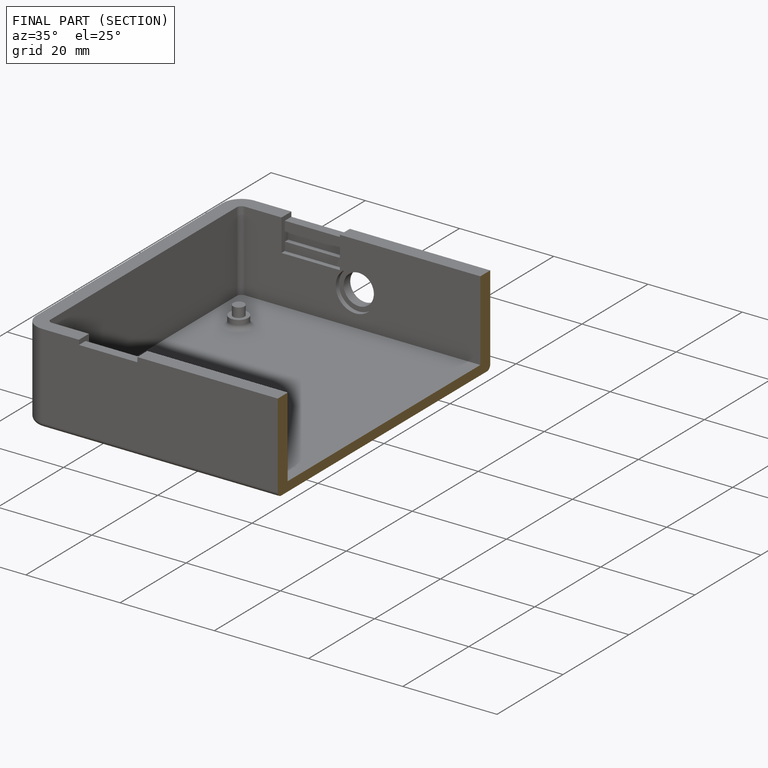
[diagram: finished part — half-section view (interior)]
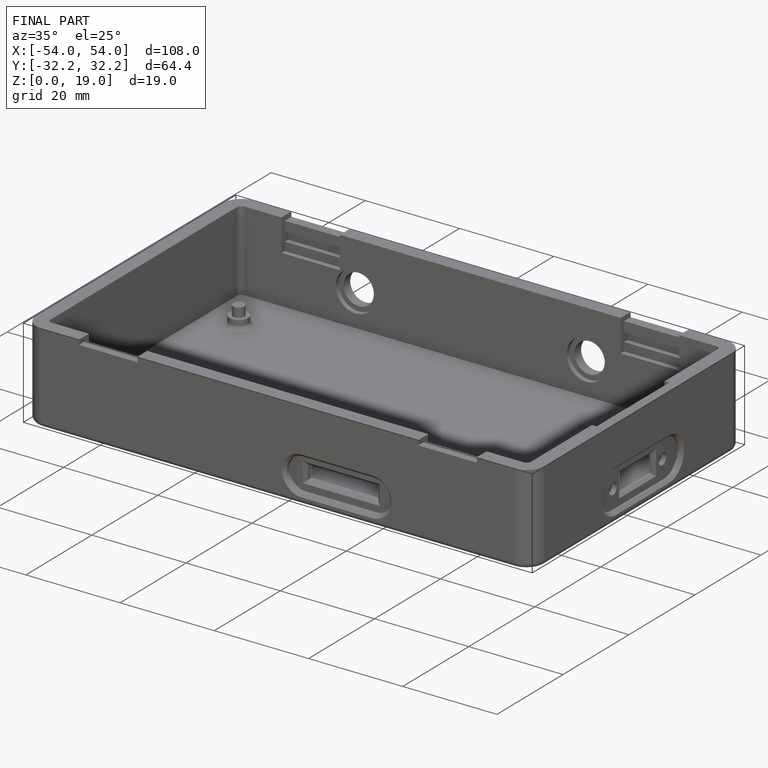
[diagram: finished part — iso view with bounding-box wireframe]
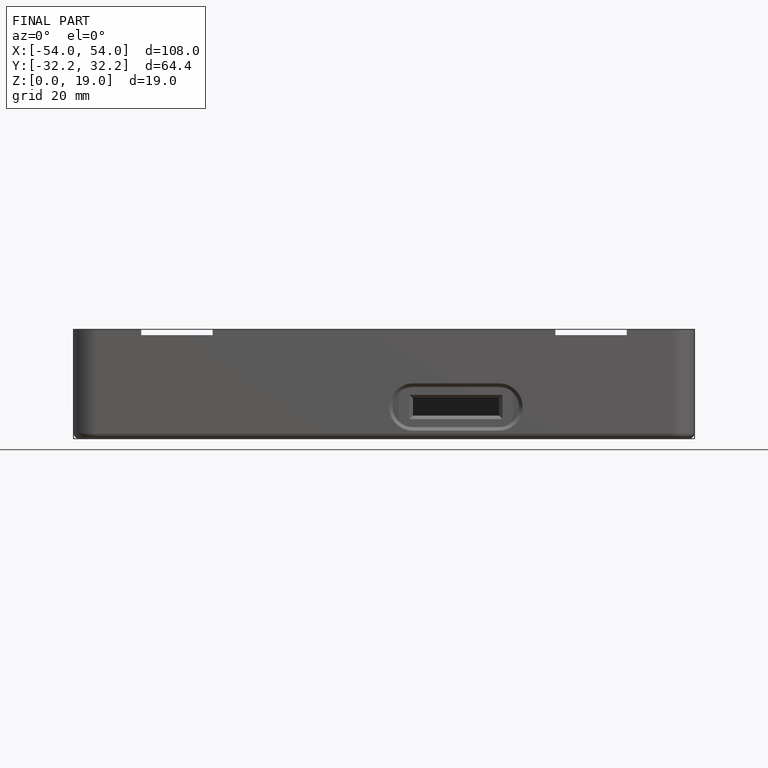
[diagram: finished part — front view with bounding-box wireframe]
